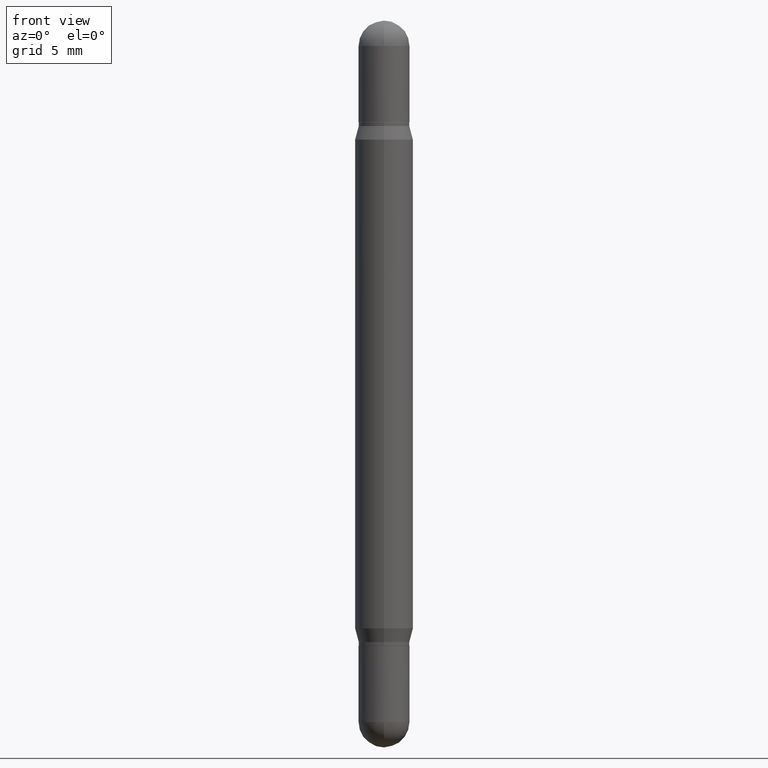
[diagram: clean part render]
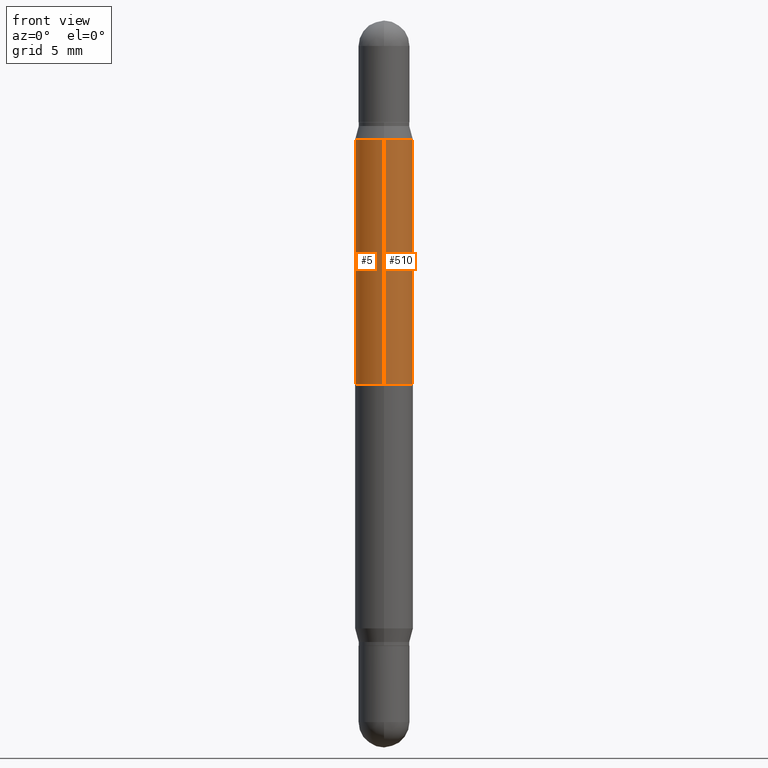
[diagram: same view with one multi-face feature highlighted, each face labeled with its STEP entity id]
A machine part, front view. The highlighted faces form ONE feature: a constant-radius fillet chain: 2 tangent blend faces with common blend radius 2.0002 mm. The faces share edges in the B-rep.
Their STEP definitions:
[1] entity #510 (Cylinder):
#4 = DIRECTION ( 'NONE',  ( -2.446235813067046569E-29, -3.480712864488044250E-15, -1.000000000000000000 ) ) ;
#101 = DIRECTION ( 'NONE',  ( 0.000000000000000000, 1.000000000000000000, -3.469013325287953293E-15 ) ) ;
#111 = EDGE_CURVE ( 'NONE', #257, #428, #361, .T. ) ;
#151 = EDGE_CURVE ( 'NONE', #457, #199, #318, .T. ) ;
#163 = ORIENTED_EDGE ( 'NONE', *, *, #111, .F. ) ;
#165 = ORIENTED_EDGE ( 'NONE', *, *, #581, .F. ) ;
#172 = EDGE_CURVE ( 'NONE', #457, #428, #376, .T. ) ;
#186 = DIRECTION ( 'NONE',  ( -2.446235813067046569E-29, -3.480712864488044250E-15, -1.000000000000000000 ) ) ;
#199 = VERTEX_POINT ( 'NONE', #884 ) ;
#256 = CARTESIAN_POINT ( 'NONE',  ( -5.499083108677531138E-16, -0.07875000000000112466, -0.3223607004545531174 ) ) ;
#257 = VERTEX_POINT ( 'NONE', #808 ) ;
#288 = CARTESIAN_POINT ( 'NONE',  ( 4.026844907845174394E-29, -1.131562810212119252E-15, -0.3223607004545533949 ) ) ;
#305 = CARTESIAN_POINT ( 'NONE',  ( 2.407707599011240601E-29, -3.435409410006936112E-15, -0.9842500000000000693 ) ) ;
#318 = CIRCLE ( 'NONE', #976, 0.07875000000000000056 ) ;
#355 = DIRECTION ( 'NONE',  ( -6.982962677686264344E-15, -1.000000000000000000, 3.469013325287953293E-15 ) ) ;
#361 = CIRCLE ( 'NONE', #592, 0.07875000000000000056 ) ;
#376 = LINE ( 'NONE', #701, #1013 ) ;
#399 = DIRECTION ( 'NONE',  ( -0.000000000000000000, -3.485547902910486918E-15, -1.000000000000000000 ) ) ;
#421 = CARTESIAN_POINT ( 'NONE',  ( -5.499083108677691868E-16, -0.07875000000000342837, -0.9842499999999997362 ) ) ;
#428 = VERTEX_POINT ( 'NONE', #421 ) ;
#457 = VERTEX_POINT ( 'NONE', #256 ) ;
#460 = DIRECTION ( 'NONE',  ( -6.982962677686264344E-15, -1.000000000000000000, 3.469013325287953293E-15 ) ) ;
#469 = DIRECTION ( 'NONE',  ( 2.446235813067046569E-29, 3.480712864488044250E-15, 1.000000000000000000 ) ) ;
#503 = VECTOR ( 'NONE', #1004, 39.37007874015748143 ) ;
#510 = ADVANCED_FACE ( 'NONE', ( #780 ), #774, .T. ) ;
#581 = EDGE_CURVE ( 'NONE', #199, #257, #910, .T. ) ;
#583 = EDGE_LOOP ( 'NONE', ( #165, #1097, #685, #163 ) ) ;
#592 = AXIS2_PLACEMENT_3D ( 'NONE', #305, #399, #101 ) ;
#685 = ORIENTED_EDGE ( 'NONE', *, *, #172, .T. ) ;
#701 = CARTESIAN_POINT ( 'NONE',  ( -5.499083108677933457E-16, -0.07875000000000685618, -1.968499999999999694 ) ) ;
#753 = AXIS2_PLACEMENT_3D ( 'NONE', #1108, #4, #355 ) ;
#774 = CYLINDRICAL_SURFACE ( 'NONE', #753, 0.07875000000000000056 ) ;
#780 = FACE_OUTER_BOUND ( 'NONE', #583, .T. ) ;
#808 = CARTESIAN_POINT ( 'NONE',  ( 5.402642173245402330E-16, 0.07874999999999655886, -0.9842500000000002913 ) ) ;
#884 = CARTESIAN_POINT ( 'NONE',  ( 5.402642173245483188E-16, 0.07874999999999887645, -0.3223607004545536725 ) ) ;
#910 = LINE ( 'NONE', #992, #503 ) ;
#976 = AXIS2_PLACEMENT_3D ( 'NONE', #288, #469, #460 ) ;
#992 = CARTESIAN_POINT ( 'NONE',  ( 5.402642173245080869E-16, 0.07874999999999313105, -1.968500000000000361 ) ) ;
#1004 = DIRECTION ( 'NONE',  ( -2.446235813067046569E-29, -3.480712864488044250E-15, -1.000000000000000000 ) ) ;
#1013 = VECTOR ( 'NONE', #186, 39.37007874015748143 ) ;
#1097 = ORIENTED_EDGE ( 'NONE', *, *, #151, .F. ) ;
#1108 = CARTESIAN_POINT ( 'NONE',  ( 0.000000000000000000, -6.861301046879293370E-15, -1.968500000000000139 ) ) ;
[2] entity #5 (Cylinder):
#5 = ADVANCED_FACE ( 'NONE', ( #278 ), #1054, .T. ) ;
#18 = EDGE_CURVE ( 'NONE', #428, #257, #676, .T. ) ;
#34 = ORIENTED_EDGE ( 'NONE', *, *, #95, .F. ) ;
#95 = EDGE_CURVE ( 'NONE', #199, #457, #717, .T. ) ;
#113 = CARTESIAN_POINT ( 'NONE',  ( 4.026844907845174394E-29, -1.131562810212119252E-15, -0.3223607004545533949 ) ) ;
#172 = EDGE_CURVE ( 'NONE', #457, #428, #376, .T. ) ;
#186 = DIRECTION ( 'NONE',  ( -2.446235813067046569E-29, -3.480712864488044250E-15, -1.000000000000000000 ) ) ;
#195 = DIRECTION ( 'NONE',  ( -2.446235813067046569E-29, -3.480712864488044250E-15, -1.000000000000000000 ) ) ;
#199 = VERTEX_POINT ( 'NONE', #884 ) ;
#212 = CARTESIAN_POINT ( 'NONE',  ( 2.407707599011240601E-29, -3.435409410006936112E-15, -0.9842500000000000693 ) ) ;
#232 = EDGE_LOOP ( 'NONE', ( #34, #809, #462, #419 ) ) ;
#241 = AXIS2_PLACEMENT_3D ( 'NONE', #113, #812, #378 ) ;
#256 = CARTESIAN_POINT ( 'NONE',  ( -5.499083108677531138E-16, -0.07875000000000112466, -0.3223607004545531174 ) ) ;
#257 = VERTEX_POINT ( 'NONE', #808 ) ;
#278 = FACE_OUTER_BOUND ( 'NONE', #232, .T. ) ;
#284 = DIRECTION ( 'NONE',  ( -0.000000000000000000, -3.485547902910486918E-15, -1.000000000000000000 ) ) ;
#376 = LINE ( 'NONE', #701, #1013 ) ;
#378 = DIRECTION ( 'NONE',  ( -6.982962677686264344E-15, -1.000000000000000000, 3.469013325287953293E-15 ) ) ;
#419 = ORIENTED_EDGE ( 'NONE', *, *, #172, .F. ) ;
#421 = CARTESIAN_POINT ( 'NONE',  ( -5.499083108677691868E-16, -0.07875000000000342837, -0.9842499999999997362 ) ) ;
#428 = VERTEX_POINT ( 'NONE', #421 ) ;
#457 = VERTEX_POINT ( 'NONE', #256 ) ;
#462 = ORIENTED_EDGE ( 'NONE', *, *, #18, .F. ) ;
#468 = AXIS2_PLACEMENT_3D ( 'NONE', #889, #195, #968 ) ;
#503 = VECTOR ( 'NONE', #1004, 39.37007874015748143 ) ;
#581 = EDGE_CURVE ( 'NONE', #199, #257, #910, .T. ) ;
#676 = CIRCLE ( 'NONE', #1084, 0.07875000000000000056 ) ;
#701 = CARTESIAN_POINT ( 'NONE',  ( -5.499083108677933457E-16, -0.07875000000000685618, -1.968499999999999694 ) ) ;
#717 = CIRCLE ( 'NONE', #241, 0.07875000000000000056 ) ;
#803 = DIRECTION ( 'NONE',  ( 0.000000000000000000, 1.000000000000000000, -3.469013325287953293E-15 ) ) ;
#808 = CARTESIAN_POINT ( 'NONE',  ( 5.402642173245402330E-16, 0.07874999999999655886, -0.9842500000000002913 ) ) ;
#809 = ORIENTED_EDGE ( 'NONE', *, *, #581, .T. ) ;
#812 = DIRECTION ( 'NONE',  ( 2.446235813067046569E-29, 3.480712864488044250E-15, 1.000000000000000000 ) ) ;
#884 = CARTESIAN_POINT ( 'NONE',  ( 5.402642173245483188E-16, 0.07874999999999887645, -0.3223607004545536725 ) ) ;
#889 = CARTESIAN_POINT ( 'NONE',  ( 0.000000000000000000, -6.861301046879293370E-15, -1.968500000000000139 ) ) ;
#910 = LINE ( 'NONE', #992, #503 ) ;
#968 = DIRECTION ( 'NONE',  ( -6.982962677686264344E-15, -1.000000000000000000, 3.469013325287953293E-15 ) ) ;
#992 = CARTESIAN_POINT ( 'NONE',  ( 5.402642173245080869E-16, 0.07874999999999313105, -1.968500000000000361 ) ) ;
#1004 = DIRECTION ( 'NONE',  ( -2.446235813067046569E-29, -3.480712864488044250E-15, -1.000000000000000000 ) ) ;
#1013 = VECTOR ( 'NONE', #186, 39.37007874015748143 ) ;
#1054 = CYLINDRICAL_SURFACE ( 'NONE', #468, 0.07875000000000000056 ) ;
#1084 = AXIS2_PLACEMENT_3D ( 'NONE', #212, #284, #803 ) ;